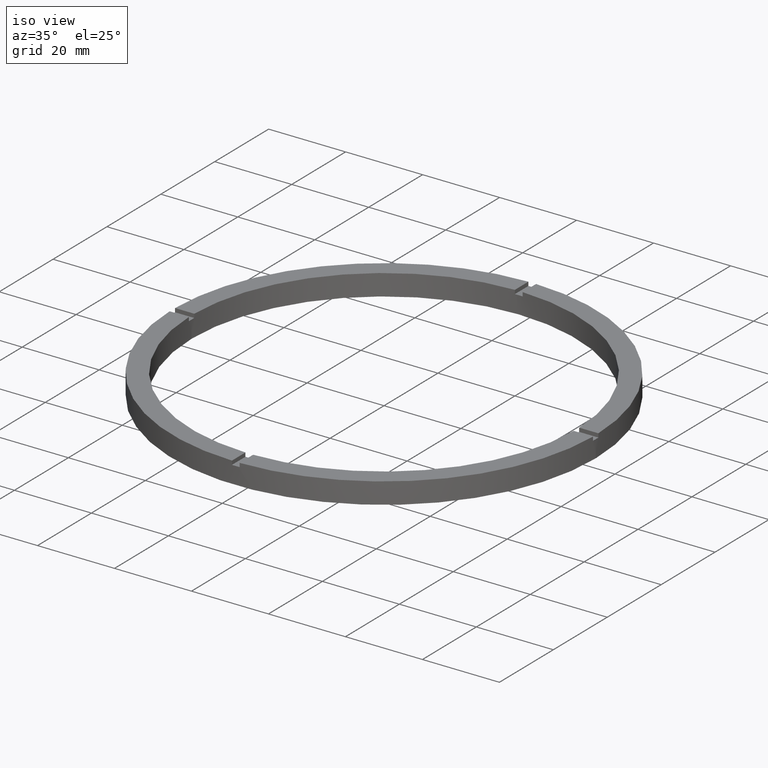
[diagram: clean part render]
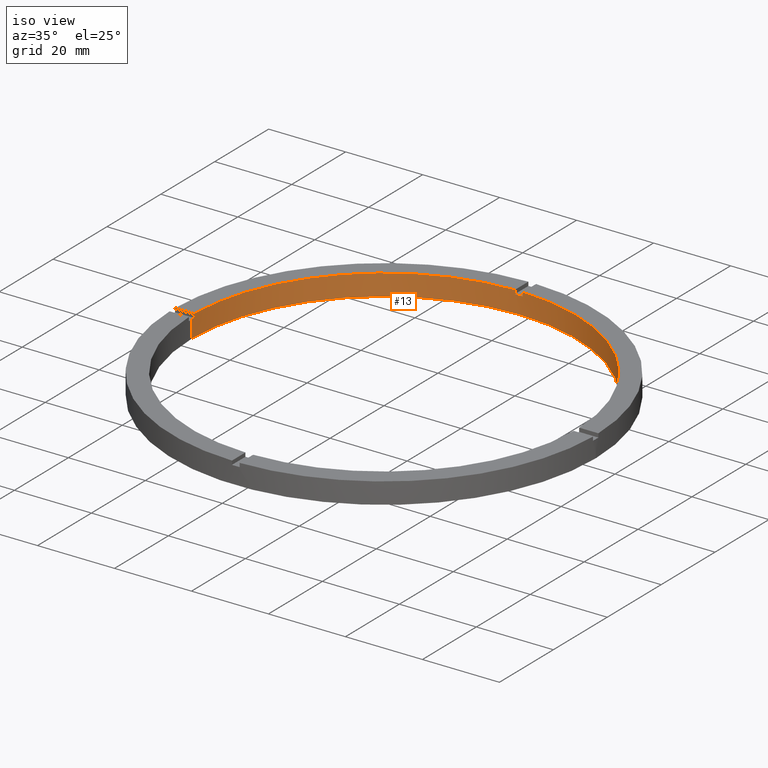
[diagram: same view with one face highlighted and labeled with its STEP entity id]
A machine part, iso view. The second image highlights one B-rep face of the part: STEP entity #13.
In plain terms, the highlighted cylindrical surface (partial cylindrical patch) has radius 50 mm, axis along (-0, -0, -1).
Its self-contained STEP definition (entity closure, byte-faithful):
#9 = VECTOR ( 'NONE', #530, 1000.000000000000000 ) ;
#11 = LINE ( 'NONE', #549, #9 ) ;
#13 = ADVANCED_FACE ( 'NONE', ( #699 ), #701, .F. ) ;
#20 = CARTESIAN_POINT ( 'NONE',  ( -50.00000000000000000, 0.000000000000000000, 4.500000000000000000 ) ) ;
#30 = CARTESIAN_POINT ( 'NONE',  ( 0.000000000000000000, 0.000000000000000000, 0.000000000000000000 ) ) ;
#33 = AXIS2_PLACEMENT_3D ( 'NONE', #30, #138, #425 ) ;
#36 = DIRECTION ( 'NONE',  ( 0.000000000000000000, 0.000000000000000000, 1.000000000000000000 ) ) ;
#49 = AXIS2_PLACEMENT_3D ( 'NONE', #751, #115, #520 ) ;
#80 = CARTESIAN_POINT ( 'NONE',  ( 49.98999899979995831, 0.9999999999998454570, 5.500000000000000000 ) ) ;
#94 = CARTESIAN_POINT ( 'NONE',  ( -49.98999899979995121, 0.9999999999999681366, 5.500000000000000000 ) ) ;
#106 = ORIENTED_EDGE ( 'NONE', *, *, #432, .T. ) ;
#115 = DIRECTION ( 'NONE',  ( 0.000000000000000000, -0.000000000000000000, 1.000000000000000000 ) ) ;
#120 = ORIENTED_EDGE ( 'NONE', *, *, #177, .T. ) ;
#123 = VERTEX_POINT ( 'NONE', #780 ) ;
#138 = DIRECTION ( 'NONE',  ( 0.000000000000000000, 0.000000000000000000, 1.000000000000000000 ) ) ;
#139 = ORIENTED_EDGE ( 'NONE', *, *, #482, .F. ) ;
#144 = ORIENTED_EDGE ( 'NONE', *, *, #272, .F. ) ;
#145 = EDGE_CURVE ( 'NONE', #634, #409, #445, .T. ) ;
#147 = ORIENTED_EDGE ( 'NONE', *, *, #771, .F. ) ;
#152 = VERTEX_POINT ( 'NONE', #279 ) ;
#155 = DIRECTION ( 'NONE',  ( -0.000000000000000000, -0.000000000000000000, -1.000000000000000000 ) ) ;
#176 = DIRECTION ( 'NONE',  ( 1.000000000000000000, 0.000000000000000000, 0.000000000000000000 ) ) ;
#177 = EDGE_CURVE ( 'NONE', #180, #669, #481, .T. ) ;
#178 = EDGE_CURVE ( 'NONE', #634, #214, #439, .T. ) ;
#179 = VERTEX_POINT ( 'NONE', #607 ) ;
#180 = VERTEX_POINT ( 'NONE', #500 ) ;
#191 = CARTESIAN_POINT ( 'NONE',  ( 0.000000000000000000, 0.000000000000000000, 4.500000000000000000 ) ) ;
#196 = CARTESIAN_POINT ( 'NONE',  ( -1.000000000000027311, 49.98999899979995121, 5.500000000000000000 ) ) ;
#205 = CARTESIAN_POINT ( 'NONE',  ( 0.000000000000000000, 0.000000000000000000, 4.500000000000000000 ) ) ;
#214 = VERTEX_POINT ( 'NONE', #358 ) ;
#215 = VECTOR ( 'NONE', #338, 1000.000000000000000 ) ;
#216 = ORIENTED_EDGE ( 'NONE', *, *, #486, .T. ) ;
#218 = CARTESIAN_POINT ( 'NONE',  ( 0.9999999999999726885, 49.98999899979995121, 5.500000000000000000 ) ) ;
#230 = EDGE_CURVE ( 'NONE', #179, #414, #704, .T. ) ;
#244 = CIRCLE ( 'NONE', #497, 50.00000000000000000 ) ;
#247 = CIRCLE ( 'NONE', #33, 50.00000000000000000 ) ;
#258 = LINE ( 'NONE', #355, #502 ) ;
#272 = EDGE_CURVE ( 'NONE', #180, #724, #749, .T. ) ;
#279 = CARTESIAN_POINT ( 'NONE',  ( 50.00000000000000000, 6.123233995736766085E-15, 0.000000000000000000 ) ) ;
#282 = CARTESIAN_POINT ( 'NONE',  ( 50.00000000000000000, 6.123233995736766085E-15, 4.500000000000000000 ) ) ;
#284 = CARTESIAN_POINT ( 'NONE',  ( 49.98999899979995831, 0.9999999999998454570, 4.500000000000000000 ) ) ;
#286 = CARTESIAN_POINT ( 'NONE',  ( 0.9999999999999726885, 49.98999899979995121, 5.500000000000000000 ) ) ;
#298 = AXIS2_PLACEMENT_3D ( 'NONE', #545, #643, #602 ) ;
#314 = EDGE_CURVE ( 'NONE', #664, #414, #513, .T. ) ;
#338 = DIRECTION ( 'NONE',  ( 0.000000000000000000, 0.000000000000000000, 1.000000000000000000 ) ) ;
#354 = AXIS2_PLACEMENT_3D ( 'NONE', #191, #547, #670 ) ;
#355 = CARTESIAN_POINT ( 'NONE',  ( -50.00000000000000000, 0.000000000000000000, 5.500000000000000000 ) ) ;
#358 = CARTESIAN_POINT ( 'NONE',  ( -1.000000000000027311, 49.98999899979995121, 4.500000000000000000 ) ) ;
#361 = EDGE_CURVE ( 'NONE', #152, #123, #247, .T. ) ;
#387 = VERTEX_POINT ( 'NONE', #196 ) ;
#397 = ORIENTED_EDGE ( 'NONE', *, *, #314, .T. ) ;
#400 = CARTESIAN_POINT ( 'NONE',  ( 0.9999999999999726885, 49.98999899979995121, 4.500000000000000000 ) ) ;
#407 = ORIENTED_EDGE ( 'NONE', *, *, #145, .F. ) ;
#409 = VERTEX_POINT ( 'NONE', #218 ) ;
#412 = CARTESIAN_POINT ( 'NONE',  ( 0.000000000000000000, 0.000000000000000000, 5.500000000000000000 ) ) ;
#414 = VERTEX_POINT ( 'NONE', #284 ) ;
#415 = ORIENTED_EDGE ( 'NONE', *, *, #178, .T. ) ;
#422 = DIRECTION ( 'NONE',  ( -0.000000000000000000, -0.000000000000000000, -1.000000000000000000 ) ) ;
#425 = DIRECTION ( 'NONE',  ( 1.000000000000000000, 0.000000000000000000, 0.000000000000000000 ) ) ;
#429 = DIRECTION ( 'NONE',  ( 0.000000000000000000, 0.000000000000000000, 1.000000000000000000 ) ) ;
#432 = EDGE_CURVE ( 'NONE', #669, #123, #258, .T. ) ;
#439 = CIRCLE ( 'NONE', #49, 50.00000000000000000 ) ;
#445 = LINE ( 'NONE', #286, #215 ) ;
#449 = CARTESIAN_POINT ( 'NONE',  ( -49.98999899979995121, 0.9999999999999681366, 5.500000000000000000 ) ) ;
#464 = EDGE_LOOP ( 'NONE', ( #139, #397, #737, #654, #407, #415, #147, #216, #144, #120, #106, #690 ) ) ;
#478 = CARTESIAN_POINT ( 'NONE',  ( 50.00000000000000000, 6.123233995736766085E-15, 5.500000000000000000 ) ) ;
#481 = CIRCLE ( 'NONE', #354, 50.00000000000000000 ) ;
#482 = EDGE_CURVE ( 'NONE', #664, #152, #488, .T. ) ;
#486 = EDGE_CURVE ( 'NONE', #387, #724, #244, .T. ) ;
#488 = LINE ( 'NONE', #478, #764 ) ;
#489 = VECTOR ( 'NONE', #566, 1000.000000000000000 ) ;
#497 = AXIS2_PLACEMENT_3D ( 'NONE', #412, #638, #176 ) ;
#500 = CARTESIAN_POINT ( 'NONE',  ( -49.98999899979995121, 0.9999999999999681366, 4.500000000000000000 ) ) ;
#501 = VECTOR ( 'NONE', #422, 1000.000000000000000 ) ;
#502 = VECTOR ( 'NONE', #596, 1000.000000000000000 ) ;
#513 = CIRCLE ( 'NONE', #535, 50.00000000000000000 ) ;
#518 = CIRCLE ( 'NONE', #597, 50.00000000000000000 ) ;
#520 = DIRECTION ( 'NONE',  ( 1.000000000000000000, 0.000000000000000000, 0.000000000000000000 ) ) ;
#530 = DIRECTION ( 'NONE',  ( -0.000000000000000000, -0.000000000000000000, -1.000000000000000000 ) ) ;
#535 = AXIS2_PLACEMENT_3D ( 'NONE', #205, #36, #684 ) ;
#545 = CARTESIAN_POINT ( 'NONE',  ( 0.000000000000000000, 0.000000000000000000, 5.500000000000000000 ) ) ;
#547 = DIRECTION ( 'NONE',  ( 0.000000000000000000, 0.000000000000000000, 1.000000000000000000 ) ) ;
#549 = CARTESIAN_POINT ( 'NONE',  ( -1.000000000000027311, 49.98999899979995121, 5.500000000000000000 ) ) ;
#566 = DIRECTION ( 'NONE',  ( 0.000000000000000000, 0.000000000000000000, 1.000000000000000000 ) ) ;
#596 = DIRECTION ( 'NONE',  ( -0.000000000000000000, -0.000000000000000000, -1.000000000000000000 ) ) ;
#597 = AXIS2_PLACEMENT_3D ( 'NONE', #744, #429, #671 ) ;
#602 = DIRECTION ( 'NONE',  ( -1.000000000000000000, 0.000000000000000000, 0.000000000000000000 ) ) ;
#607 = CARTESIAN_POINT ( 'NONE',  ( 49.98999899979995831, 0.9999999999998454570, 5.500000000000000000 ) ) ;
#634 = VERTEX_POINT ( 'NONE', #400 ) ;
#638 = DIRECTION ( 'NONE',  ( 0.000000000000000000, 0.000000000000000000, 1.000000000000000000 ) ) ;
#643 = DIRECTION ( 'NONE',  ( -0.000000000000000000, -0.000000000000000000, -1.000000000000000000 ) ) ;
#654 = ORIENTED_EDGE ( 'NONE', *, *, #685, .T. ) ;
#664 = VERTEX_POINT ( 'NONE', #282 ) ;
#669 = VERTEX_POINT ( 'NONE', #20 ) ;
#670 = DIRECTION ( 'NONE',  ( 1.000000000000000000, 0.000000000000000000, 0.000000000000000000 ) ) ;
#671 = DIRECTION ( 'NONE',  ( 1.000000000000000000, 0.000000000000000000, 0.000000000000000000 ) ) ;
#684 = DIRECTION ( 'NONE',  ( 1.000000000000000000, 0.000000000000000000, 0.000000000000000000 ) ) ;
#685 = EDGE_CURVE ( 'NONE', #179, #409, #518, .T. ) ;
#690 = ORIENTED_EDGE ( 'NONE', *, *, #361, .F. ) ;
#699 = FACE_OUTER_BOUND ( 'NONE', #464, .T. ) ;
#701 = CYLINDRICAL_SURFACE ( 'NONE', #298, 50.00000000000000000 ) ;
#704 = LINE ( 'NONE', #80, #501 ) ;
#724 = VERTEX_POINT ( 'NONE', #449 ) ;
#737 = ORIENTED_EDGE ( 'NONE', *, *, #230, .F. ) ;
#744 = CARTESIAN_POINT ( 'NONE',  ( 0.000000000000000000, 0.000000000000000000, 5.500000000000000000 ) ) ;
#749 = LINE ( 'NONE', #94, #489 ) ;
#751 = CARTESIAN_POINT ( 'NONE',  ( 0.000000000000000000, 0.000000000000000000, 4.500000000000000000 ) ) ;
#764 = VECTOR ( 'NONE', #155, 1000.000000000000000 ) ;
#771 = EDGE_CURVE ( 'NONE', #387, #214, #11, .T. ) ;
#780 = CARTESIAN_POINT ( 'NONE',  ( -50.00000000000000000, 0.000000000000000000, 0.000000000000000000 ) ) ;